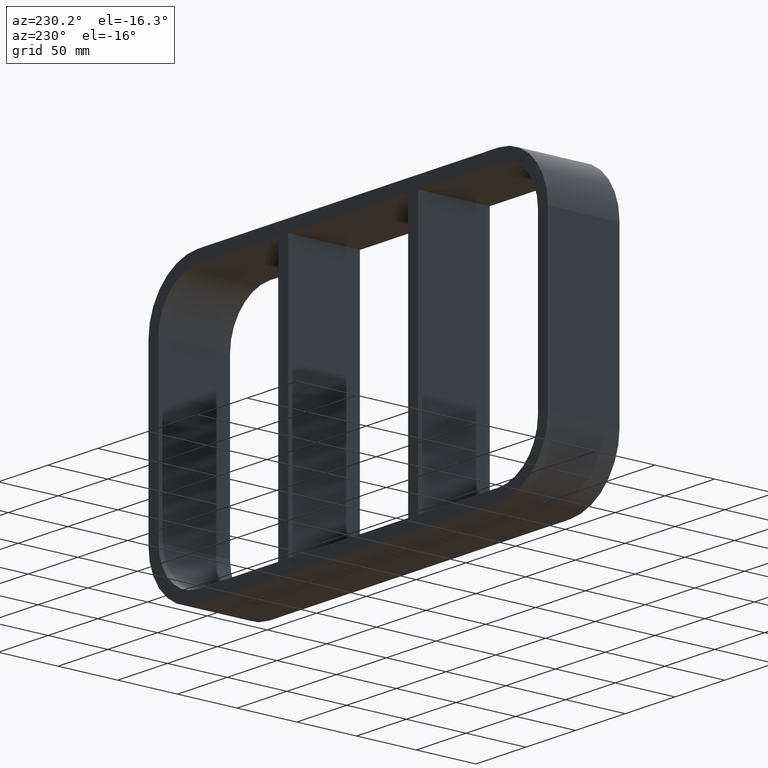
[diagram: clean part render]
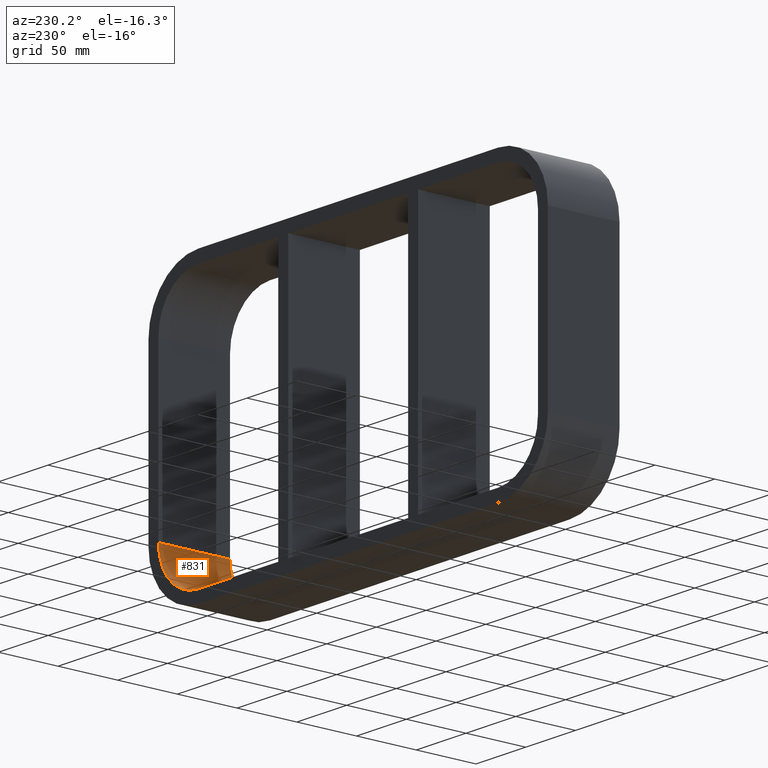
[diagram: same view with one face highlighted and labeled with its STEP entity id]
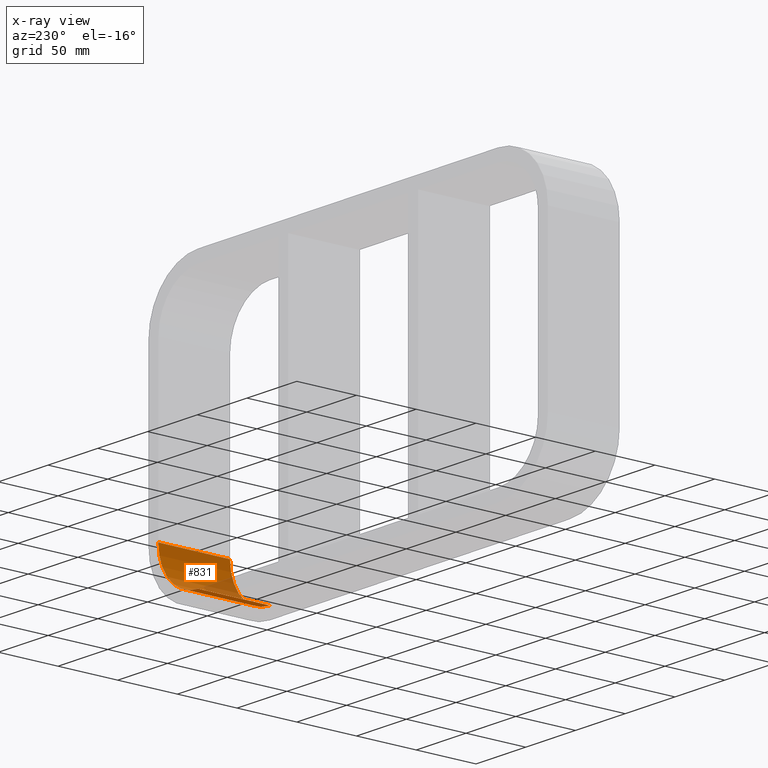
[diagram: x-ray of the same camera — body ghosted, the highlighted face saturated]
A machine part, auxiliary view. The second image highlights one B-rep face of the part: STEP entity #831.
The next image is the same camera in x-ray: the body ghosted, the highlighted face saturated — about 14% of this face is hidden behind the body in this view.
In plain terms, the highlighted cylindrical surface (partial cylindrical patch) has radius 40 mm, axis along (0, -1, 0).
Its self-contained STEP definition (entity closure, byte-faithful):
#185=CARTESIAN_POINT('',(150.75000000000006,-3.0,-108.99999999999999));
#186=VERTEX_POINT('',#185);
#193=CARTESIAN_POINT('',(150.75000000000006,57.0,-108.99999999999999));
#194=VERTEX_POINT('',#193);
#195=CARTESIAN_POINT('',(150.75000000000006,57.0,-108.99999999999999));
#196=DIRECTION('',(0.0,-1.0,0.0));
#197=VECTOR('',#196,60.0);
#198=LINE('',#195,#197);
#199=EDGE_CURVE('',#194,#186,#198,.T.);
#549=CARTESIAN_POINT('',(190.75000000000006,-3.0,-68.999999999999986));
#550=VERTEX_POINT('',#549);
#557=CARTESIAN_POINT('',(150.75000000000006,-3.0,-68.999999999999986));
#558=DIRECTION('',(0.0,-1.0,0.0));
#559=DIRECTION('',(0.707106781186547,0.0,-0.707106781186547));
#560=AXIS2_PLACEMENT_3D('',#557,#558,#559);
#561=CIRCLE('',#560,39.999999999999993);
#562=EDGE_CURVE('',#186,#550,#561,.T.);
#807=CARTESIAN_POINT('',(150.75000000000006,0.0,-68.999999999999986));
#808=DIRECTION('',(0.0,-1.0,0.0));
#809=DIRECTION('',(0.707106781186547,0.0,-0.707106781186547));
#810=AXIS2_PLACEMENT_3D('',#807,#808,#809);
#811=CYLINDRICAL_SURFACE('',#810,40.0);
#812=CARTESIAN_POINT('',(190.75000000000006,57.0,-68.999999999999986));
#813=VERTEX_POINT('',#812);
#814=CARTESIAN_POINT('',(150.75000000000006,57.0,-68.999999999999986));
#815=DIRECTION('',(0.0,1.0,0.0));
#816=DIRECTION('',(0.707106781186547,0.0,-0.707106781186547));
#817=AXIS2_PLACEMENT_3D('',#814,#815,#816);
#818=CIRCLE('',#817,39.999999999999993);
#819=EDGE_CURVE('',#813,#194,#818,.T.);
#820=ORIENTED_EDGE('',*,*,#819,.T.);
#821=ORIENTED_EDGE('',*,*,#199,.T.);
#822=ORIENTED_EDGE('',*,*,#562,.T.);
#823=CARTESIAN_POINT('',(190.75000000000006,-3.0,-68.999999999999986));
#824=DIRECTION('',(0.0,1.0,0.0));
#825=VECTOR('',#824,60.0);
#826=LINE('',#823,#825);
#827=EDGE_CURVE('',#550,#813,#826,.T.);
#828=ORIENTED_EDGE('',*,*,#827,.T.);
#829=EDGE_LOOP('',(#820,#821,#822,#828));
#830=FACE_OUTER_BOUND('',#829,.T.);
#831=ADVANCED_FACE('',(#830),#811,.F.);